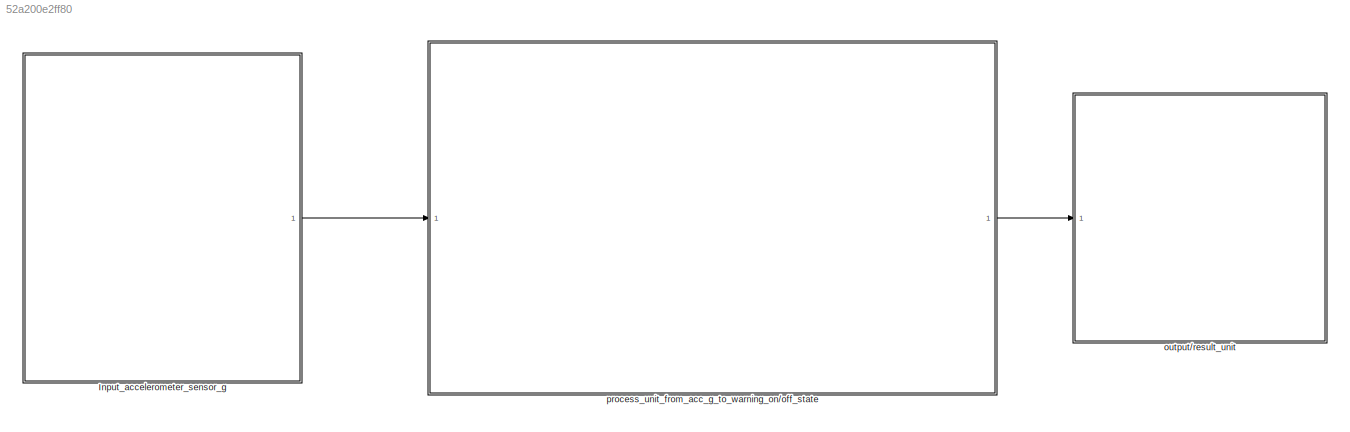
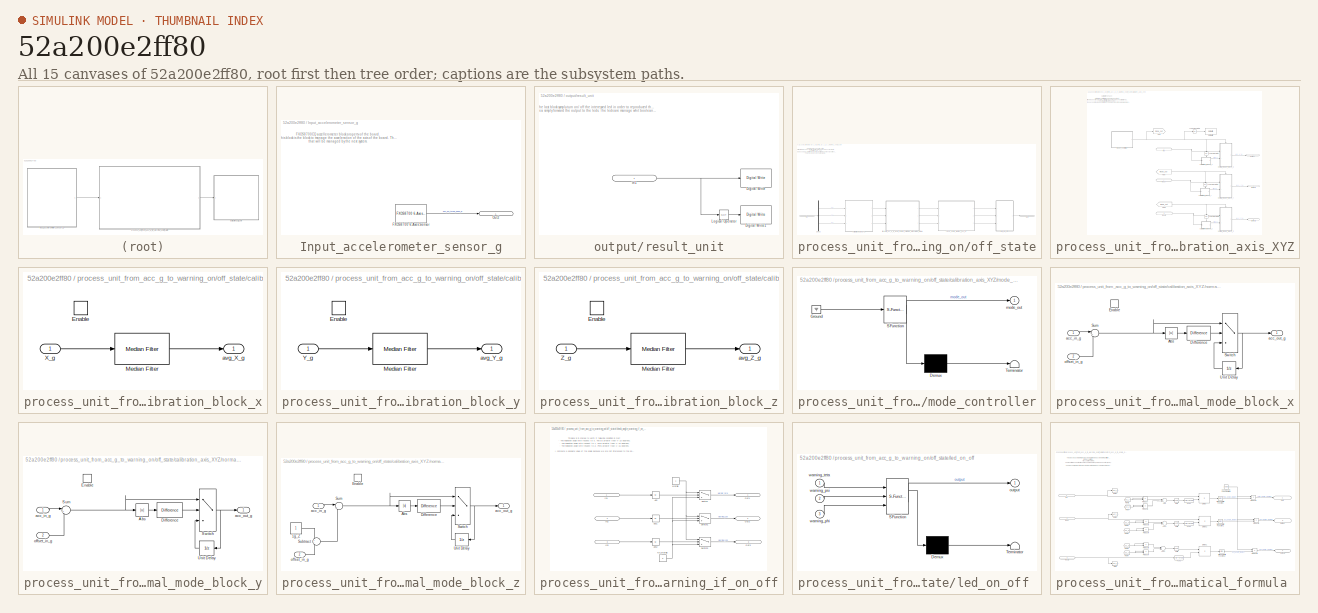
[diagram: thumbnail index - all 15 canvases of the model, root first then tree order]
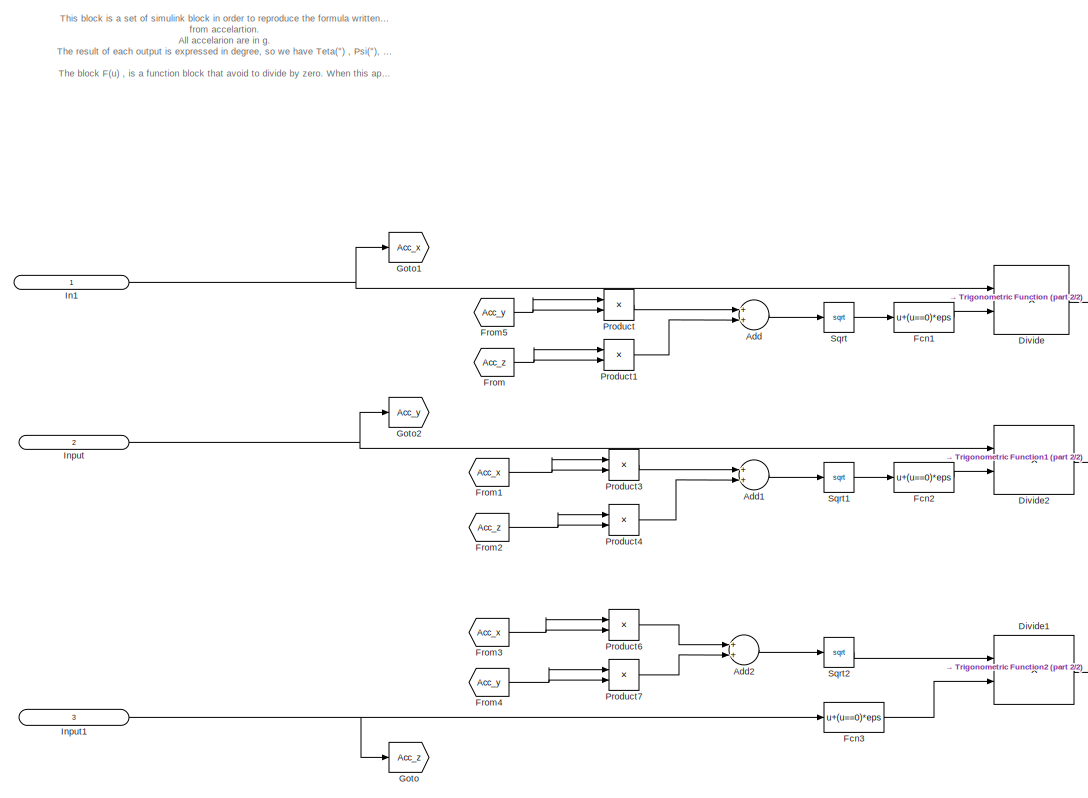
[diagram: process_unit_from_acc_g_to_warning_on/off_state/transform_acc_g_to_angle_degree_performing_mathematical_formula  - part 1/2, left side, full height]
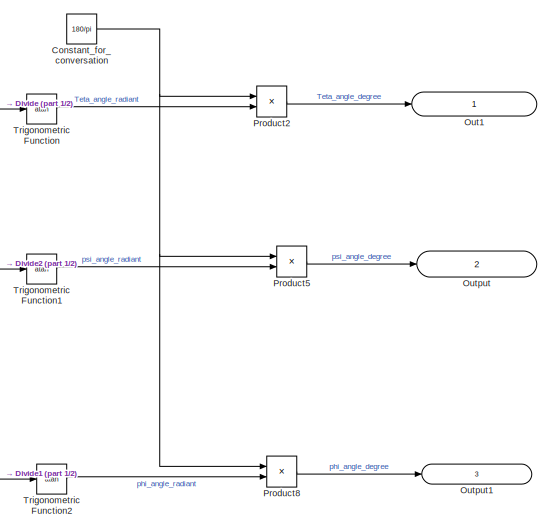
[diagram: process_unit_from_acc_g_to_warning_on/off_state/transform_acc_g_to_angle_degree_performing_mathematical_formula  - part 2/2, middle right region]
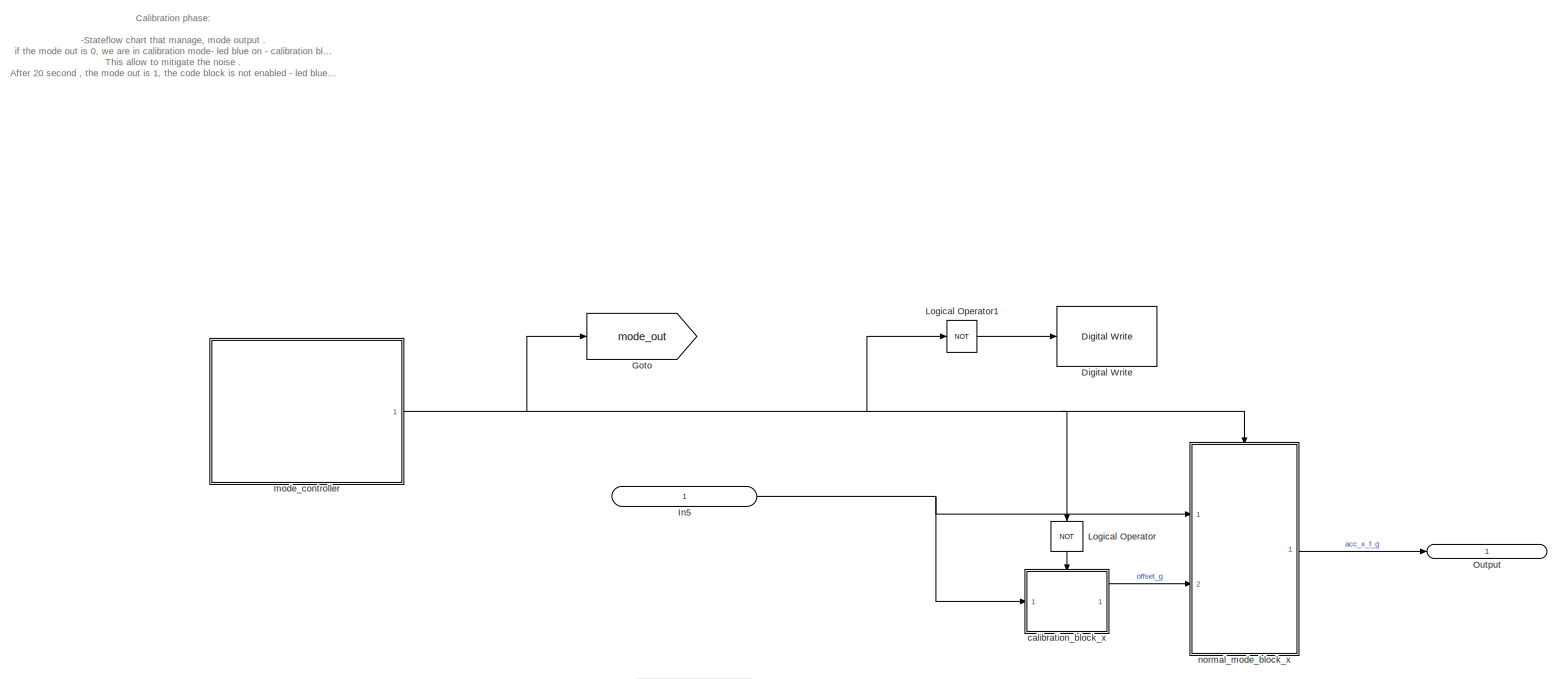
[diagram: process_unit_from_acc_g_to_warning_on/off_state/calibration_axis_XYZ - part 1/2, full width, top band]
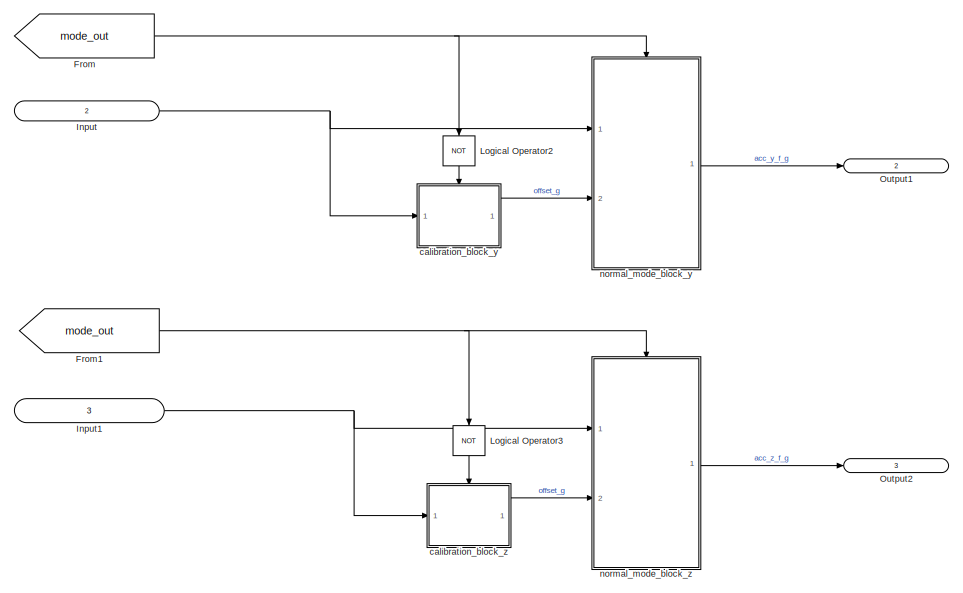
[diagram: process_unit_from_acc_g_to_warning_on/off_state/calibration_axis_XYZ - part 2/2, bottom right region]
MODEL slx_52a200e2ff80
KIND model
CONFIG AbsTol = auto
CONFIG EnableMultiTasking = on
CONFIG FixedStep = 0.1
CONFIG MaxStep = auto
CONFIG MinStep = auto
CONFIG RelTol = 1e-3
CONFIG SampleTimeConstraint = Unconstrained
CONFIG Solver = FixedStepDiscrete
CONFIG SolverName = FixedStepDiscrete
CONFIG StartTime = 0.0
CONFIG StopTime = 30
BLOCK [SubSystem] Input_accelerometer_sensor_g
  Ports = [0, 1]
  RequestExecContextInheritance = off
BLOCK [Reference] Input_accelerometer_sensor_g/FXOS8700 6-Axes Sensor  REF=frdmk64flib/FXOS8700 6-Axes Sensor
  Ports = [0, 1]
  SourceBlock = frdmk64flib/FXOS8700 6-Axes Sensor
  SourceProductBaseCode = EC_FRDM_K64F
  SourceProductName = Simulink Coder Support Package for NXP FRDM-K64F Board
  SourceType = freedomk64f.fxos8700
BLOCK [Outport] Input_accelerometer_sensor_g/Out2
  IconDisplay = Signal name
BLOCK [SubSystem] output//result_unit
  Ports = [1]
  RequestExecContextInheritance = off
BLOCK [Reference] output//result_unit/Digital Write  REF=frdmk64flib/Digital Write
  Ports = [1]
  SourceBlock = frdmk64flib/Digital Write
  SourceProductBaseCode = EC_FRDM_K64F
  SourceProductName = Simulink Coder Support Package for NXP FRDM-K64F Board
  SourceType = freedomk64f.DigitalWrite
BLOCK [Reference] output//result_unit/Digital Write1  REF=frdmk64flib/Digital Write
  Ports = [1]
  SourceBlock = frdmk64flib/Digital Write
  SourceProductBaseCode = EC_FRDM_K64F
  SourceProductName = Simulink Coder Support Package for NXP FRDM-K64F Board
  SourceType = freedomk64f.DigitalWrite
BLOCK [Inport] output//result_unit/In1
  IconDisplay = Signal name
BLOCK [Logic] output//result_unit/Logical Operator
  AllPortsSameDT = off
  Operator = NOT
  OutDataTypeStr = boolean
  Ports = [1, 1]
BLOCK [SubSystem] process_unit_from_acc_g_to_warning_on//off_state
  Ports = [1, 1]
  RequestExecContextInheritance = off
BLOCK [Demux] process_unit_from_acc_g_to_warning_on//off_state/Demux
  DisplayOption = bar
  Outputs = 3
  Ports = [1, 3]
BLOCK [Inport] process_unit_from_acc_g_to_warning_on//off_state/In1
  IconDisplay = Signal name
BLOCK [Outport] process_unit_from_acc_g_to_warning_on//off_state/Out1
  IconDisplay = Signal name
BLOCK [SubSystem] process_unit_from_acc_g_to_warning_on//off_state/calibration_axis_XYZ
  Ports = [3, 3]
  RequestExecContextInheritance = off
BLOCK [Reference] process_unit_from_acc_g_to_warning_on//off_state/calibration_axis_XYZ/Digital Write  REF=frdmk64flib/Digital Write
  Ports = [1]
  SourceBlock = frdmk64flib/Digital Write
  SourceProductBaseCode = EC_FRDM_K64F
  SourceProductName = Simulink Coder Support Package for NXP FRDM-K64F Board
  SourceType = freedomk64f.DigitalWrite
BLOCK [From] process_unit_from_acc_g_to_warning_on//off_state/calibration_axis_XYZ/From
  GotoTag = mode_out
BLOCK [From] process_unit_from_acc_g_to_warning_on//off_state/calibration_axis_XYZ/From1
  GotoTag = mode_out
BLOCK [Goto] process_unit_from_acc_g_to_warning_on//off_state/calibration_axis_XYZ/Goto
  GotoTag = mode_out
BLOCK [Inport] process_unit_from_acc_g_to_warning_on//off_state/calibration_axis_XYZ/In5
  IconDisplay = Signal name
BLOCK [Inport] process_unit_from_acc_g_to_warning_on//off_state/calibration_axis_XYZ/Input
  IconDisplay = Signal name
  Port = 2
BLOCK [Inport] process_unit_from_acc_g_to_warning_on//off_state/calibration_axis_XYZ/Input1
  IconDisplay = Signal name
  Port = 3
BLOCK [Logic] process_unit_from_acc_g_to_warning_on//off_state/calibration_axis_XYZ/Logical Operator
  AllPortsSameDT = off
  Operator = NOT
  OutDataTypeStr = boolean
  Ports = [1, 1]
BLOCK [Logic] process_unit_from_acc_g_to_warning_on//off_state/calibration_axis_XYZ/Logical Operator1
  AllPortsSameDT = off
  Operator = NOT
  OutDataTypeStr = boolean
  Ports = [1, 1]
BLOCK [Logic] process_unit_from_acc_g_to_warning_on//off_state/calibration_axis_XYZ/Logical Operator2
  AllPortsSameDT = off
  Operator = NOT
  OutDataTypeStr = boolean
  Ports = [1, 1]
BLOCK [Logic] process_unit_from_acc_g_to_warning_on//off_state/calibration_axis_XYZ/Logical Operator3
  AllPortsSameDT = off
  Operator = NOT
  OutDataTypeStr = boolean
  Ports = [1, 1]
BLOCK [Outport] process_unit_from_acc_g_to_warning_on//off_state/calibration_axis_XYZ/Output
  IconDisplay = Signal name
BLOCK [Outport] process_unit_from_acc_g_to_warning_on//off_state/calibration_axis_XYZ/Output1
  IconDisplay = Signal name
  Port = 2
BLOCK [Outport] process_unit_from_acc_g_to_warning_on//off_state/calibration_axis_XYZ/Output2
  IconDisplay = Signal name
  Port = 3
BLOCK [SubSystem] process_unit_from_acc_g_to_warning_on//off_state/calibration_axis_XYZ/calibration_block_x
  Ports = [1, 1, 1]
  RequestExecContextInheritance = off
BLOCK [EnablePort] process_unit_from_acc_g_to_warning_on//off_state/calibration_axis_XYZ/calibration_block_x/Enable
  Ports = []
BLOCK [Reference] process_unit_from_acc_g_to_warning_on//off_state/calibration_axis_XYZ/calibration_block_x/Median Filter  REF=dspstat3/Median
Filter
  Ports = [1, 1]
  SourceBlock = dspstat3/Median\nFilter
  SourceProductBaseCode = DS
  SourceProductName = DSP System Toolbox
  SourceType = dsp.MedianFilter
BLOCK [Inport] process_unit_from_acc_g_to_warning_on//off_state/calibration_axis_XYZ/calibration_block_x/X_g
  IconDisplay = Port number
BLOCK [Outport] process_unit_from_acc_g_to_warning_on//off_state/calibration_axis_XYZ/calibration_block_x/avg_X_g
  IconDisplay = Port number
BLOCK [SubSystem] process_unit_from_acc_g_to_warning_on//off_state/calibration_axis_XYZ/calibration_block_y
  Ports = [1, 1, 1]
  RequestExecContextInheritance = off
BLOCK [EnablePort] process_unit_from_acc_g_to_warning_on//off_state/calibration_axis_XYZ/calibration_block_y/Enable
  Ports = []
BLOCK [Reference] process_unit_from_acc_g_to_warning_on//off_state/calibration_axis_XYZ/calibration_block_y/Median Filter  REF=dspstat3/Median
Filter
  Ports = [1, 1]
  SourceBlock = dspstat3/Median\nFilter
  SourceProductBaseCode = DS
  SourceProductName = DSP System Toolbox
  SourceType = dsp.MedianFilter
BLOCK [Inport] process_unit_from_acc_g_to_warning_on//off_state/calibration_axis_XYZ/calibration_block_y/Y_g
  IconDisplay = Port number
BLOCK [Outport] process_unit_from_acc_g_to_warning_on//off_state/calibration_axis_XYZ/calibration_block_y/avg_Y_g
  IconDisplay = Port number
BLOCK [SubSystem] process_unit_from_acc_g_to_warning_on//off_state/calibration_axis_XYZ/calibration_block_z
  Ports = [1, 1, 1]
  RequestExecContextInheritance = off
BLOCK [EnablePort] process_unit_from_acc_g_to_warning_on//off_state/calibration_axis_XYZ/calibration_block_z/Enable
  Ports = []
BLOCK [Reference] process_unit_from_acc_g_to_warning_on//off_state/calibration_axis_XYZ/calibration_block_z/Median Filter  REF=dspstat3/Median
Filter
  Ports = [1, 1]
  SourceBlock = dspstat3/Median\nFilter
  SourceProductBaseCode = DS
  SourceProductName = DSP System Toolbox
  SourceType = dsp.MedianFilter
BLOCK [Inport] process_unit_from_acc_g_to_warning_on//off_state/calibration_axis_XYZ/calibration_block_z/Z_g
  IconDisplay = Port number
BLOCK [Outport] process_unit_from_acc_g_to_warning_on//off_state/calibration_axis_XYZ/calibration_block_z/avg_Z_g
  IconDisplay = Port number
BLOCK [SubSystem] process_unit_from_acc_g_to_warning_on//off_state/calibration_axis_XYZ/mode_controller
  BlockKeywords = __PRM__SERIALIZED__DATA__:Stateflow Chart,Stateflow Diagram
  ErrorFcn = Stateflow.Translate.translate
  PermitHierarchicalResolution = ExplicitOnly
  Ports = [0, 1]
  RequestExecContextInheritance = off
  SFBlockType = Chart
  TreatAsAtomicUnit = on
BLOCK [Demux] process_unit_from_acc_g_to_warning_on//off_state/calibration_axis_XYZ/mode_controller/ Demux 
  Outputs = 1
  Ports = [1, 1]
BLOCK [Ground] process_unit_from_acc_g_to_warning_on//off_state/calibration_axis_XYZ/mode_controller/ Ground 
BLOCK [S-Function] process_unit_from_acc_g_to_warning_on//off_state/calibration_axis_XYZ/mode_controller/ SFunction 
  EnableBusSupport = on
  FunctionName = sf_sfun
  PortCounts = [1 2]
  Ports = [1, 2]
  SFcnIsStateOwnerBlock = off
  SFunctionDeploymentMode = off
  Tag = Stateflow S-Function 3
BLOCK [Terminator] process_unit_from_acc_g_to_warning_on//off_state/calibration_axis_XYZ/mode_controller/ Terminator 
BLOCK [Outport] process_unit_from_acc_g_to_warning_on//off_state/calibration_axis_XYZ/mode_controller/mode_out
  IconDisplay = Port number
BLOCK [SubSystem] process_unit_from_acc_g_to_warning_on//off_state/calibration_axis_XYZ/normal_mode_block_x
  Ports = [2, 1, 1]
  RequestExecContextInheritance = off
BLOCK [Abs] process_unit_from_acc_g_to_warning_on//off_state/calibration_axis_XYZ/normal_mode_block_x/Abs
  SaturateOnIntegerOverflow = off
BLOCK [Reference] process_unit_from_acc_g_to_warning_on//off_state/calibration_axis_XYZ/normal_mode_block_x/Difference  REF=simulink/Discrete/Difference
  Ports = [1, 1]
  SourceBlock = simulink/Discrete/Difference
  SourceProductBaseCode = SL
  SourceProductName = Simulink
  SourceType = Difference
BLOCK [EnablePort] process_unit_from_acc_g_to_warning_on//off_state/calibration_axis_XYZ/normal_mode_block_x/Enable
  Ports = []
BLOCK [Sum] process_unit_from_acc_g_to_warning_on//off_state/calibration_axis_XYZ/normal_mode_block_x/Sum
  IconShape = round
  InputSameDT = off
  Inputs = |+-
  OutDataTypeStr = Inherit: Inherit via internal rule
  Ports = [2, 1]
  SaturateOnIntegerOverflow = off
BLOCK [Switch] process_unit_from_acc_g_to_warning_on//off_state/calibration_axis_XYZ/normal_mode_block_x/Switch
  Criteria = u2 > Threshold
  InputSameDT = off
  SaturateOnIntegerOverflow = off
  Threshold = 0.002
BLOCK [UnitDelay] process_unit_from_acc_g_to_warning_on//off_state/calibration_axis_XYZ/normal_mode_block_x/Unit Delay
  HasFrameUpgradeWarning = on
  SampleTime = -1
BLOCK [Inport] process_unit_from_acc_g_to_warning_on//off_state/calibration_axis_XYZ/normal_mode_block_x/acc_in_g
  IconDisplay = Port number
BLOCK [Outport] process_unit_from_acc_g_to_warning_on//off_state/calibration_axis_XYZ/normal_mode_block_x/acc_out_g
  IconDisplay = Port number
BLOCK [Inport] process_unit_from_acc_g_to_warning_on//off_state/calibration_axis_XYZ/normal_mode_block_x/offset_in_g
  IconDisplay = Port number
  Port = 2
BLOCK [SubSystem] process_unit_from_acc_g_to_warning_on//off_state/calibration_axis_XYZ/normal_mode_block_y
  Ports = [2, 1, 1]
  RequestExecContextInheritance = off
BLOCK [Abs] process_unit_from_acc_g_to_warning_on//off_state/calibration_axis_XYZ/normal_mode_block_y/Abs
  SaturateOnIntegerOverflow = off
BLOCK [Reference] process_unit_from_acc_g_to_warning_on//off_state/calibration_axis_XYZ/normal_mode_block_y/Difference  REF=simulink/Discrete/Difference
  Ports = [1, 1]
  SourceBlock = simulink/Discrete/Difference
  SourceProductBaseCode = SL
  SourceProductName = Simulink
  SourceType = Difference
BLOCK [EnablePort] process_unit_from_acc_g_to_warning_on//off_state/calibration_axis_XYZ/normal_mode_block_y/Enable
  Ports = []
BLOCK [Sum] process_unit_from_acc_g_to_warning_on//off_state/calibration_axis_XYZ/normal_mode_block_y/Sum
  IconShape = round
  InputSameDT = off
  Inputs = |+-
  OutDataTypeStr = Inherit: Inherit via internal rule
  Ports = [2, 1]
  SaturateOnIntegerOverflow = off
BLOCK [Switch] process_unit_from_acc_g_to_warning_on//off_state/calibration_axis_XYZ/normal_mode_block_y/Switch
  Criteria = u2 > Threshold
  InputSameDT = off
  SaturateOnIntegerOverflow = off
  Threshold = 0.002
BLOCK [UnitDelay] process_unit_from_acc_g_to_warning_on//off_state/calibration_axis_XYZ/normal_mode_block_y/Unit Delay
  HasFrameUpgradeWarning = on
  SampleTime = -1
BLOCK [Inport] process_unit_from_acc_g_to_warning_on//off_state/calibration_axis_XYZ/normal_mode_block_y/acc_in_g
  IconDisplay = Port number
BLOCK [Outport] process_unit_from_acc_g_to_warning_on//off_state/calibration_axis_XYZ/normal_mode_block_y/acc_out_g
  IconDisplay = Port number
BLOCK [Inport] process_unit_from_acc_g_to_warning_on//off_state/calibration_axis_XYZ/normal_mode_block_y/offset_in_g
  IconDisplay = Port number
  Port = 2
BLOCK [SubSystem] process_unit_from_acc_g_to_warning_on//off_state/calibration_axis_XYZ/normal_mode_block_z
  Ports = [2, 1, 1]
  RequestExecContextInheritance = off
BLOCK [Constant] process_unit_from_acc_g_to_warning_on//off_state/calibration_axis_XYZ/normal_mode_block_z/1g_Z
  SampleTime = -1
BLOCK [Abs] process_unit_from_acc_g_to_warning_on//off_state/calibration_axis_XYZ/normal_mode_block_z/Abs
  SaturateOnIntegerOverflow = off
BLOCK [Reference] process_unit_from_acc_g_to_warning_on//off_state/calibration_axis_XYZ/normal_mode_block_z/Difference  REF=simulink/Discrete/Difference
  Ports = [1, 1]
  SourceBlock = simulink/Discrete/Difference
  SourceProductBaseCode = SL
  SourceProductName = Simulink
  SourceType = Difference
BLOCK [EnablePort] process_unit_from_acc_g_to_warning_on//off_state/calibration_axis_XYZ/normal_mode_block_z/Enable
  Ports = []
BLOCK [Sum] process_unit_from_acc_g_to_warning_on//off_state/calibration_axis_XYZ/normal_mode_block_z/Subtract
  IconShape = round
  InputSameDT = off
  Inputs = +-
  OutDataTypeStr = Inherit: Inherit via internal rule
  Ports = [2, 1]
  SaturateOnIntegerOverflow = off
BLOCK [Sum] process_unit_from_acc_g_to_warning_on//off_state/calibration_axis_XYZ/normal_mode_block_z/Sum
  IconShape = round
  InputSameDT = off
  Inputs = |+-
  OutDataTypeStr = Inherit: Inherit via internal rule
  Ports = [2, 1]
  SaturateOnIntegerOverflow = off
BLOCK [Switch] process_unit_from_acc_g_to_warning_on//off_state/calibration_axis_XYZ/normal_mode_block_z/Switch
  Criteria = u2 > Threshold
  InputSameDT = off
  SaturateOnIntegerOverflow = off
  Threshold = 0.002
BLOCK [UnitDelay] process_unit_from_acc_g_to_warning_on//off_state/calibration_axis_XYZ/normal_mode_block_z/Unit Delay
  HasFrameUpgradeWarning = on
  SampleTime = -1
BLOCK [Inport] process_unit_from_acc_g_to_warning_on//off_state/calibration_axis_XYZ/normal_mode_block_z/acc_in_g
  IconDisplay = Port number
BLOCK [Outport] process_unit_from_acc_g_to_warning_on//off_state/calibration_axis_XYZ/normal_mode_block_z/acc_out_g
  IconDisplay = Port number
BLOCK [Inport] process_unit_from_acc_g_to_warning_on//off_state/calibration_axis_XYZ/normal_mode_block_z/offset_in_g
  IconDisplay = Port number
  Port = 2
BLOCK [SubSystem] process_unit_from_acc_g_to_warning_on//off_state/check_angle_warning_if_on_off
  Ports = [3, 3]
  RequestExecContextInheritance = off
BLOCK [Abs] process_unit_from_acc_g_to_warning_on//off_state/check_angle_warning_if_on_off/Abs
  SaturateOnIntegerOverflow = off
BLOCK [Abs] process_unit_from_acc_g_to_warning_on//off_state/check_angle_warning_if_on_off/Abs1
  SaturateOnIntegerOverflow = off
BLOCK [Abs] process_unit_from_acc_g_to_warning_on//off_state/check_angle_warning_if_on_off/Abs2
  SaturateOnIntegerOverflow = off
BLOCK [Inport] process_unit_from_acc_g_to_warning_on//off_state/check_angle_warning_if_on_off/In1
  IconDisplay = Signal name
BLOCK [Inport] process_unit_from_acc_g_to_warning_on//off_state/check_angle_warning_if_on_off/In2
  IconDisplay = Signal name
  Port = 2
BLOCK [Inport] process_unit_from_acc_g_to_warning_on//off_state/check_angle_warning_if_on_off/In3
  IconDisplay = Signal name
  Port = 3
BLOCK [Constant] process_unit_from_acc_g_to_warning_on//off_state/check_angle_warning_if_on_off/No_warnig
  Value = 0
BLOCK [Outport] process_unit_from_acc_g_to_warning_on//off_state/check_angle_warning_if_on_off/Out1
  IconDisplay = Signal name
BLOCK [Outport] process_unit_from_acc_g_to_warning_on//off_state/check_angle_warning_if_on_off/Out2
  IconDisplay = Signal name
  Port = 2
BLOCK [Outport] process_unit_from_acc_g_to_warning_on//off_state/check_angle_warning_if_on_off/Out3
  IconDisplay = Signal name
  Port = 3
BLOCK [Switch] process_unit_from_acc_g_to_warning_on//off_state/check_angle_warning_if_on_off/Switch
  Criteria = u2 > Threshold
  InputSameDT = off
  SaturateOnIntegerOverflow = off
  Threshold = 15
BLOCK [Switch] process_unit_from_acc_g_to_warning_on//off_state/check_angle_warning_if_on_off/Switch1
  Criteria = u2 > Threshold
  InputSameDT = off
  SaturateOnIntegerOverflow = off
  Threshold = 15
BLOCK [Switch] process_unit_from_acc_g_to_warning_on//off_state/check_angle_warning_if_on_off/Switch2
  Criteria = u2 > Threshold
  InputSameDT = off
  SaturateOnIntegerOverflow = off
  Threshold = 15
BLOCK [Constant] process_unit_from_acc_g_to_warning_on//off_state/check_angle_warning_if_on_off/warnig 
BLOCK [SubSystem] process_unit_from_acc_g_to_warning_on//off_state/led_on_off 
  BlockKeywords = __PRM__SERIALIZED__DATA__:Stateflow Chart,Stateflow Diagram
  ErrorFcn = Stateflow.Translate.translate
  PermitHierarchicalResolution = ExplicitOnly
  Ports = [3, 1]
  RequestExecContextInheritance = off
  SFBlockType = Chart
  TreatAsAtomicUnit = on
BLOCK [Demux] process_unit_from_acc_g_to_warning_on//off_state/led_on_off / Demux 
  Outputs = 1
  Ports = [1, 1]
BLOCK [S-Function] process_unit_from_acc_g_to_warning_on//off_state/led_on_off / SFunction 
  EnableBusSupport = on
  FunctionName = sf_sfun
  PortCounts = [3 2]
  Ports = [3, 2]
  SFcnIsStateOwnerBlock = off
  SFunctionDeploymentMode = off
  Tag = Stateflow S-Function 4
BLOCK [Terminator] process_unit_from_acc_g_to_warning_on//off_state/led_on_off / Terminator 
BLOCK [Outport] process_unit_from_acc_g_to_warning_on//off_state/led_on_off /output
  IconDisplay = Port number
BLOCK [Inport] process_unit_from_acc_g_to_warning_on//off_state/led_on_off /warning_phi
  IconDisplay = Port number
  Port = 3
BLOCK [Inport] process_unit_from_acc_g_to_warning_on//off_state/led_on_off /warning_psi
  IconDisplay = Port number
  Port = 2
BLOCK [Inport] process_unit_from_acc_g_to_warning_on//off_state/led_on_off /warning_teta
  IconDisplay = Port number
BLOCK [SubSystem] process_unit_from_acc_g_to_warning_on//off_state/transform_acc_g_to_angle_degree_performing_mathematical_formula 
  Ports = [3, 3]
  RequestExecContextInheritance = off
BLOCK [Sum] process_unit_from_acc_g_to_warning_on//off_state/transform_acc_g_to_angle_degree_performing_mathematical_formula /Add
  InputSameDT = off
  OutDataTypeStr = Inherit: Inherit via internal rule
  Ports = [2, 1]
  SaturateOnIntegerOverflow = off
BLOCK [Sum] process_unit_from_acc_g_to_warning_on//off_state/transform_acc_g_to_angle_degree_performing_mathematical_formula /Add1
  InputSameDT = off
  OutDataTypeStr = Inherit: Inherit via internal rule
  Ports = [2, 1]
  SaturateOnIntegerOverflow = off
BLOCK [Sum] process_unit_from_acc_g_to_warning_on//off_state/transform_acc_g_to_angle_degree_performing_mathematical_formula /Add2
  InputSameDT = off
  OutDataTypeStr = Inherit: Inherit via internal rule
  Ports = [2, 1]
  SaturateOnIntegerOverflow = off
BLOCK [Constant] process_unit_from_acc_g_to_warning_on//off_state/transform_acc_g_to_angle_degree_performing_mathematical_formula /Constant_for_conversation
  Value = 180/pi
BLOCK [Product] process_unit_from_acc_g_to_warning_on//off_state/transform_acc_g_to_angle_degree_performing_mathematical_formula /Divide
  InputSameDT = off
  Inputs = */
  OutDataTypeStr = Inherit: Inherit via internal rule
  Ports = [2, 1]
  RndMeth = Floor
  SaturateOnIntegerOverflow = off
BLOCK [Product] process_unit_from_acc_g_to_warning_on//off_state/transform_acc_g_to_angle_degree_performing_mathematical_formula /Divide1
  InputSameDT = off
  Inputs = */
  OutDataTypeStr = Inherit: Inherit via internal rule
  Ports = [2, 1]
  RndMeth = Floor
  SaturateOnIntegerOverflow = off
BLOCK [Product] process_unit_from_acc_g_to_warning_on//off_state/transform_acc_g_to_angle_degree_performing_mathematical_formula /Divide2
  InputSameDT = off
  Inputs = */
  OutDataTypeStr = Inherit: Inherit via internal rule
  Ports = [2, 1]
  RndMeth = Floor
  SaturateOnIntegerOverflow = off
BLOCK [Fcn] process_unit_from_acc_g_to_warning_on//off_state/transform_acc_g_to_angle_degree_performing_mathematical_formula /Fcn1
  Expr = u+(u==0)*eps
BLOCK [Fcn] process_unit_from_acc_g_to_warning_on//off_state/transform_acc_g_to_angle_degree_performing_mathematical_formula /Fcn2
  Expr = u+(u==0)*eps
BLOCK [Fcn] process_unit_from_acc_g_to_warning_on//off_state/transform_acc_g_to_angle_degree_performing_mathematical_formula /Fcn3
  Expr = u+(u==0)*eps
BLOCK [From] process_unit_from_acc_g_to_warning_on//off_state/transform_acc_g_to_angle_degree_performing_mathematical_formula /From
  GotoTag = Acc_z
BLOCK [From] process_unit_from_acc_g_to_warning_on//off_state/transform_acc_g_to_angle_degree_performing_mathematical_formula /From1
  GotoTag = Acc_x
BLOCK [From] process_unit_from_acc_g_to_warning_on//off_state/transform_acc_g_to_angle_degree_performing_mathematical_formula /From2
  GotoTag = Acc_z
BLOCK [From] process_unit_from_acc_g_to_warning_on//off_state/transform_acc_g_to_angle_degree_performing_mathematical_formula /From3
  GotoTag = Acc_x
BLOCK [From] process_unit_from_acc_g_to_warning_on//off_state/transform_acc_g_to_angle_degree_performing_mathematical_formula /From4
  GotoTag = Acc_y
BLOCK [From] process_unit_from_acc_g_to_warning_on//off_state/transform_acc_g_to_angle_degree_performing_mathematical_formula /From5
  GotoTag = Acc_y
BLOCK [Goto] process_unit_from_acc_g_to_warning_on//off_state/transform_acc_g_to_angle_degree_performing_mathematical_formula /Goto
  GotoTag = Acc_z
BLOCK [Goto] process_unit_from_acc_g_to_warning_on//off_state/transform_acc_g_to_angle_degree_performing_mathematical_formula /Goto1
  GotoTag = Acc_x
BLOCK [Goto] process_unit_from_acc_g_to_warning_on//off_state/transform_acc_g_to_angle_degree_performing_mathematical_formula /Goto2
  GotoTag = Acc_y
BLOCK [Inport] process_unit_from_acc_g_to_warning_on//off_state/transform_acc_g_to_angle_degree_performing_mathematical_formula /In1
  IconDisplay = Signal name
BLOCK [Inport] process_unit_from_acc_g_to_warning_on//off_state/transform_acc_g_to_angle_degree_performing_mathematical_formula /Input
  IconDisplay = Signal name
  Port = 2
BLOCK [Inport] process_unit_from_acc_g_to_warning_on//off_state/transform_acc_g_to_angle_degree_performing_mathematical_formula /Input1
  IconDisplay = Signal name
  Port = 3
BLOCK [Outport] process_unit_from_acc_g_to_warning_on//off_state/transform_acc_g_to_angle_degree_performing_mathematical_formula /Out1
  IconDisplay = Signal name
BLOCK [Outport] process_unit_from_acc_g_to_warning_on//off_state/transform_acc_g_to_angle_degree_performing_mathematical_formula /Output
  IconDisplay = Signal name
  Port = 2
BLOCK [Outport] process_unit_from_acc_g_to_warning_on//off_state/transform_acc_g_to_angle_degree_performing_mathematical_formula /Output1
  IconDisplay = Signal name
  Port = 3
BLOCK [Product] process_unit_from_acc_g_to_warning_on//off_state/transform_acc_g_to_angle_degree_performing_mathematical_formula /Product
  InputSameDT = off
  OutDataTypeStr = Inherit: Inherit via internal rule
  Ports = [2, 1]
  RndMeth = Floor
  SaturateOnIntegerOverflow = off
BLOCK [Product] process_unit_from_acc_g_to_warning_on//off_state/transform_acc_g_to_angle_degree_performing_mathematical_formula /Product1
  InputSameDT = off
  OutDataTypeStr = Inherit: Inherit via internal rule
  Ports = [2, 1]
  RndMeth = Floor
  SaturateOnIntegerOverflow = off
BLOCK [Product] process_unit_from_acc_g_to_warning_on//off_state/transform_acc_g_to_angle_degree_performing_mathematical_formula /Product2
  InputSameDT = off
  OutDataTypeStr = Inherit: Inherit via internal rule
  Ports = [2, 1]
  RndMeth = Floor
  SaturateOnIntegerOverflow = off
BLOCK [Product] process_unit_from_acc_g_to_warning_on//off_state/transform_acc_g_to_angle_degree_performing_mathematical_formula /Product3
  InputSameDT = off
  OutDataTypeStr = Inherit: Inherit via internal rule
  Ports = [2, 1]
  RndMeth = Floor
  SaturateOnIntegerOverflow = off
BLOCK [Product] process_unit_from_acc_g_to_warning_on//off_state/transform_acc_g_to_angle_degree_performing_mathematical_formula /Product4
  InputSameDT = off
  OutDataTypeStr = Inherit: Inherit via internal rule
  Ports = [2, 1]
  RndMeth = Floor
  SaturateOnIntegerOverflow = off
BLOCK [Product] process_unit_from_acc_g_to_warning_on//off_state/transform_acc_g_to_angle_degree_performing_mathematical_formula /Product5
  InputSameDT = off
  OutDataTypeStr = Inherit: Inherit via internal rule
  Ports = [2, 1]
  RndMeth = Floor
  SaturateOnIntegerOverflow = off
BLOCK [Product] process_unit_from_acc_g_to_warning_on//off_state/transform_acc_g_to_angle_degree_performing_mathematical_formula /Product6
  InputSameDT = off
  OutDataTypeStr = Inherit: Inherit via internal rule
  Ports = [2, 1]
  RndMeth = Floor
  SaturateOnIntegerOverflow = off
BLOCK [Product] process_unit_from_acc_g_to_warning_on//off_state/transform_acc_g_to_angle_degree_performing_mathematical_formula /Product7
  InputSameDT = off
  OutDataTypeStr = Inherit: Inherit via internal rule
  Ports = [2, 1]
  RndMeth = Floor
  SaturateOnIntegerOverflow = off
BLOCK [Product] process_unit_from_acc_g_to_warning_on//off_state/transform_acc_g_to_angle_degree_performing_mathematical_formula /Product8
  InputSameDT = off
  OutDataTypeStr = Inherit: Inherit via internal rule
  Ports = [2, 1]
  RndMeth = Floor
  SaturateOnIntegerOverflow = off
BLOCK [Sqrt] process_unit_from_acc_g_to_warning_on//off_state/transform_acc_g_to_angle_degree_performing_mathematical_formula /Sqrt
BLOCK [Sqrt] process_unit_from_acc_g_to_warning_on//off_state/transform_acc_g_to_angle_degree_performing_mathematical_formula /Sqrt1
BLOCK [Sqrt] process_unit_from_acc_g_to_warning_on//off_state/transform_acc_g_to_angle_degree_performing_mathematical_formula /Sqrt2
BLOCK [Trigonometry] process_unit_from_acc_g_to_warning_on//off_state/transform_acc_g_to_angle_degree_performing_mathematical_formula /Trigonometric Function
  Operator = atan
  Ports = [1, 1]
BLOCK [Trigonometry] process_unit_from_acc_g_to_warning_on//off_state/transform_acc_g_to_angle_degree_performing_mathematical_formula /Trigonometric Function1
  Operator = atan
  Ports = [1, 1]
BLOCK [Trigonometry] process_unit_from_acc_g_to_warning_on//off_state/transform_acc_g_to_angle_degree_performing_mathematical_formula /Trigonometric Function2
  Operator = atan
  Ports = [1, 1]
ANNOTATION Input_accelerometer_sensor_g: FXOS8700CQ accellerometer block property of the board. This block is the block to manage the acceleration of the axis of the board. The output is a triad of value [Acc_x,Acc_y,Acc_z] , in a range +2g / -2g that will be managed by the next system.
ANNOTATION output//result_unit: The last block symply turn on/ off the interessed led in order to reproduced the desired behavior. It is a simply forward the output to the leds. The leds are manage whit boolean value.
ANNOTATION process_unit_from_acc_g_to_warning_on//off_state: This is the process unit system. I splited into three subsystem in order to create a clean process in order to see how data is processed during the woking mode: 1) calibration axis_XYZ This block deals a calibration phase. it consist in remove the noise of the signal. This phase lasts 20 second, the led blue is on. After that the led blue is off, and the board is ready to work. This phase is done ...<+1469ch>
ANNOTATION process_unit_from_acc_g_to_warning_on//off_state/calibration_axis_XYZ: Calibration phase: -Stateflow chart that manage, mode output . if the mode out is 0, we are in calibration mode- led blue on - calibration block works. Consist in produce an average of the past date in order to subtract this data as offset to the orginal signal. This allow to mitigate the noise . After 20 second , the mode out is 1, the code block is not enabled - led blue off - the normal block s...<+14ch>
ANNOTATION process_unit_from_acc_g_to_warning_on//off_state/check_angle_warning_if_on_off: Thi block is in charge to verify if following condition is met: - The inclination angle with respect to X, Teta is greater than +/-15 degrees; - The inclination angle with respect to Y, Psi is greater than +/-15 degrees; - The inclination angle with respect to Z, Phi is greater than +/-15 degrees. I compute a absolute value of the angle because we are not interessed to the positive o negative valu...<+285ch>
ANNOTATION process_unit_from_acc_g_to_warning_on//off_state/transform_acc_g_to_angle_degree_performing_mathematical_formula : This block is a set of simulink block in order to reproduce the formula written on the assignment to produce an angle starting from accelartion. All accelarion are in g. The result of each output is expressed in degree, so we have Teta(°) , Psi(°), Phi(°) The block F(u) , is a function block that avoid to divide by zero. When this append the output will have a number very near to zero but not zero...<+130ch>
LINE Input_accelerometer_sensor_g/FXOS8700 6-Axes Sensor:1 -> Input_accelerometer_sensor_g/Out2:1
LINE Input_accelerometer_sensor_g:1 -> process_unit_from_acc_g_to_warning_on//off_state:1
NET output//result_unit/In1:1 -> output//result_unit/Digital Write:1, output//result_unit/Logical Operator:1
LINE output//result_unit/Logical Operator:1 -> output//result_unit/Digital Write1:1
LINE process_unit_from_acc_g_to_warning_on//off_state/Demux:1 -> process_unit_from_acc_g_to_warning_on//off_state/calibration_axis_XYZ:1
LINE process_unit_from_acc_g_to_warning_on//off_state/Demux:2 -> process_unit_from_acc_g_to_warning_on//off_state/calibration_axis_XYZ:2
LINE process_unit_from_acc_g_to_warning_on//off_state/Demux:3 -> process_unit_from_acc_g_to_warning_on//off_state/calibration_axis_XYZ:3
LINE process_unit_from_acc_g_to_warning_on//off_state/In1:1 -> process_unit_from_acc_g_to_warning_on//off_state/Demux:1
NET process_unit_from_acc_g_to_warning_on//off_state/calibration_axis_XYZ/From1:1 -> process_unit_from_acc_g_to_warning_on//off_state/calibration_axis_XYZ/Logical Operator3:1, process_unit_from_acc_g_to_warning_on//off_state/calibration_axis_XYZ/normal_mode_block_z:enable
NET process_unit_from_acc_g_to_warning_on//off_state/calibration_axis_XYZ/From:1 -> process_unit_from_acc_g_to_warning_on//off_state/calibration_axis_XYZ/Logical Operator2:1, process_unit_from_acc_g_to_warning_on//off_state/calibration_axis_XYZ/normal_mode_block_y:enable
NET process_unit_from_acc_g_to_warning_on//off_state/calibration_axis_XYZ/In5:1 -> process_unit_from_acc_g_to_warning_on//off_state/calibration_axis_XYZ/calibration_block_x:1, process_unit_from_acc_g_to_warning_on//off_state/calibration_axis_XYZ/normal_mode_block_x:1
NET process_unit_from_acc_g_to_warning_on//off_state/calibration_axis_XYZ/Input1:1 -> process_unit_from_acc_g_to_warning_on//off_state/calibration_axis_XYZ/calibration_block_z:1, process_unit_from_acc_g_to_warning_on//off_state/calibration_axis_XYZ/normal_mode_block_z:1
NET process_unit_from_acc_g_to_warning_on//off_state/calibration_axis_XYZ/Input:1 -> process_unit_from_acc_g_to_warning_on//off_state/calibration_axis_XYZ/calibration_block_y:1, process_unit_from_acc_g_to_warning_on//off_state/calibration_axis_XYZ/normal_mode_block_y:1
LINE process_unit_from_acc_g_to_warning_on//off_state/calibration_axis_XYZ/Logical Operator1:1 -> process_unit_from_acc_g_to_warning_on//off_state/calibration_axis_XYZ/Digital Write:1
LINE process_unit_from_acc_g_to_warning_on//off_state/calibration_axis_XYZ/Logical Operator2:1 -> process_unit_from_acc_g_to_warning_on//off_state/calibration_axis_XYZ/calibration_block_y:enable
LINE process_unit_from_acc_g_to_warning_on//off_state/calibration_axis_XYZ/Logical Operator3:1 -> process_unit_from_acc_g_to_warning_on//off_state/calibration_axis_XYZ/calibration_block_z:enable
LINE process_unit_from_acc_g_to_warning_on//off_state/calibration_axis_XYZ/Logical Operator:1 -> process_unit_from_acc_g_to_warning_on//off_state/calibration_axis_XYZ/calibration_block_x:enable
LINE process_unit_from_acc_g_to_warning_on//off_state/calibration_axis_XYZ/calibration_block_x/Median Filter:1 -> process_unit_from_acc_g_to_warning_on//off_state/calibration_axis_XYZ/calibration_block_x/avg_X_g:1
LINE process_unit_from_acc_g_to_warning_on//off_state/calibration_axis_XYZ/calibration_block_x/X_g:1 -> process_unit_from_acc_g_to_warning_on//off_state/calibration_axis_XYZ/calibration_block_x/Median Filter:1
LINE process_unit_from_acc_g_to_warning_on//off_state/calibration_axis_XYZ/calibration_block_x:1 -> process_unit_from_acc_g_to_warning_on//off_state/calibration_axis_XYZ/normal_mode_block_x:2
LINE process_unit_from_acc_g_to_warning_on//off_state/calibration_axis_XYZ/calibration_block_y/Median Filter:1 -> process_unit_from_acc_g_to_warning_on//off_state/calibration_axis_XYZ/calibration_block_y/avg_Y_g:1
LINE process_unit_from_acc_g_to_warning_on//off_state/calibration_axis_XYZ/calibration_block_y/Y_g:1 -> process_unit_from_acc_g_to_warning_on//off_state/calibration_axis_XYZ/calibration_block_y/Median Filter:1
LINE process_unit_from_acc_g_to_warning_on//off_state/calibration_axis_XYZ/calibration_block_y:1 -> process_unit_from_acc_g_to_warning_on//off_state/calibration_axis_XYZ/normal_mode_block_y:2
LINE process_unit_from_acc_g_to_warning_on//off_state/calibration_axis_XYZ/calibration_block_z/Median Filter:1 -> process_unit_from_acc_g_to_warning_on//off_state/calibration_axis_XYZ/calibration_block_z/avg_Z_g:1
LINE process_unit_from_acc_g_to_warning_on//off_state/calibration_axis_XYZ/calibration_block_z/Z_g:1 -> process_unit_from_acc_g_to_warning_on//off_state/calibration_axis_XYZ/calibration_block_z/Median Filter:1
LINE process_unit_from_acc_g_to_warning_on//off_state/calibration_axis_XYZ/calibration_block_z:1 -> process_unit_from_acc_g_to_warning_on//off_state/calibration_axis_XYZ/normal_mode_block_z:2
NET process_unit_from_acc_g_to_warning_on//off_state/calibration_axis_XYZ/mode_controller:1 -> process_unit_from_acc_g_to_warning_on//off_state/calibration_axis_XYZ/Goto:1, process_unit_from_acc_g_to_warning_on//off_state/calibration_axis_XYZ/Logical Operator1:1, process_unit_from_acc_g_to_warning_on//off_state/calibration_axis_XYZ/Logical Operator:1, process_unit_from_acc_g_to_warning_on//off_state/calibration_axis_XYZ/normal_mode_block_x:enable
LINE process_unit_from_acc_g_to_warning_on//off_state/calibration_axis_XYZ/normal_mode_block_x/Abs:1 -> process_unit_from_acc_g_to_warning_on//off_state/calibration_axis_XYZ/normal_mode_block_x/Difference:1
LINE process_unit_from_acc_g_to_warning_on//off_state/calibration_axis_XYZ/normal_mode_block_x/Difference:1 -> process_unit_from_acc_g_to_warning_on//off_state/calibration_axis_XYZ/normal_mode_block_x/Switch:2
NET process_unit_from_acc_g_to_warning_on//off_state/calibration_axis_XYZ/normal_mode_block_x/Sum:1 -> process_unit_from_acc_g_to_warning_on//off_state/calibration_axis_XYZ/normal_mode_block_x/Abs:1, process_unit_from_acc_g_to_warning_on//off_state/calibration_axis_XYZ/normal_mode_block_x/Switch:1
NET process_unit_from_acc_g_to_warning_on//off_state/calibration_axis_XYZ/normal_mode_block_x/Switch:1 -> process_unit_from_acc_g_to_warning_on//off_state/calibration_axis_XYZ/normal_mode_block_x/Unit Delay:1, process_unit_from_acc_g_to_warning_on//off_state/calibration_axis_XYZ/normal_mode_block_x/acc_out_g:1
LINE process_unit_from_acc_g_to_warning_on//off_state/calibration_axis_XYZ/normal_mode_block_x/Unit Delay:1 -> process_unit_from_acc_g_to_warning_on//off_state/calibration_axis_XYZ/normal_mode_block_x/Switch:3
LINE process_unit_from_acc_g_to_warning_on//off_state/calibration_axis_XYZ/normal_mode_block_x/acc_in_g:1 -> process_unit_from_acc_g_to_warning_on//off_state/calibration_axis_XYZ/normal_mode_block_x/Sum:1
LINE process_unit_from_acc_g_to_warning_on//off_state/calibration_axis_XYZ/normal_mode_block_x/offset_in_g:1 -> process_unit_from_acc_g_to_warning_on//off_state/calibration_axis_XYZ/normal_mode_block_x/Sum:2
LINE process_unit_from_acc_g_to_warning_on//off_state/calibration_axis_XYZ/normal_mode_block_x:1 -> process_unit_from_acc_g_to_warning_on//off_state/calibration_axis_XYZ/Output:1
LINE process_unit_from_acc_g_to_warning_on//off_state/calibration_axis_XYZ/normal_mode_block_y/Abs:1 -> process_unit_from_acc_g_to_warning_on//off_state/calibration_axis_XYZ/normal_mode_block_y/Difference:1
LINE process_unit_from_acc_g_to_warning_on//off_state/calibration_axis_XYZ/normal_mode_block_y/Difference:1 -> process_unit_from_acc_g_to_warning_on//off_state/calibration_axis_XYZ/normal_mode_block_y/Switch:2
NET process_unit_from_acc_g_to_warning_on//off_state/calibration_axis_XYZ/normal_mode_block_y/Sum:1 -> process_unit_from_acc_g_to_warning_on//off_state/calibration_axis_XYZ/normal_mode_block_y/Abs:1, process_unit_from_acc_g_to_warning_on//off_state/calibration_axis_XYZ/normal_mode_block_y/Switch:1
NET process_unit_from_acc_g_to_warning_on//off_state/calibration_axis_XYZ/normal_mode_block_y/Switch:1 -> process_unit_from_acc_g_to_warning_on//off_state/calibration_axis_XYZ/normal_mode_block_y/Unit Delay:1, process_unit_from_acc_g_to_warning_on//off_state/calibration_axis_XYZ/normal_mode_block_y/acc_out_g:1
LINE process_unit_from_acc_g_to_warning_on//off_state/calibration_axis_XYZ/normal_mode_block_y/Unit Delay:1 -> process_unit_from_acc_g_to_warning_on//off_state/calibration_axis_XYZ/normal_mode_block_y/Switch:3
LINE process_unit_from_acc_g_to_warning_on//off_state/calibration_axis_XYZ/normal_mode_block_y/acc_in_g:1 -> process_unit_from_acc_g_to_warning_on//off_state/calibration_axis_XYZ/normal_mode_block_y/Sum:1
LINE process_unit_from_acc_g_to_warning_on//off_state/calibration_axis_XYZ/normal_mode_block_y/offset_in_g:1 -> process_unit_from_acc_g_to_warning_on//off_state/calibration_axis_XYZ/normal_mode_block_y/Sum:2
LINE process_unit_from_acc_g_to_warning_on//off_state/calibration_axis_XYZ/normal_mode_block_y:1 -> process_unit_from_acc_g_to_warning_on//off_state/calibration_axis_XYZ/Output1:1
LINE process_unit_from_acc_g_to_warning_on//off_state/calibration_axis_XYZ/normal_mode_block_z/1g_Z:1 -> process_unit_from_acc_g_to_warning_on//off_state/calibration_axis_XYZ/normal_mode_block_z/Subtract:1
LINE process_unit_from_acc_g_to_warning_on//off_state/calibration_axis_XYZ/normal_mode_block_z/Abs:1 -> process_unit_from_acc_g_to_warning_on//off_state/calibration_axis_XYZ/normal_mode_block_z/Difference:1
LINE process_unit_from_acc_g_to_warning_on//off_state/calibration_axis_XYZ/normal_mode_block_z/Difference:1 -> process_unit_from_acc_g_to_warning_on//off_state/calibration_axis_XYZ/normal_mode_block_z/Switch:2
LINE process_unit_from_acc_g_to_warning_on//off_state/calibration_axis_XYZ/normal_mode_block_z/Subtract:1 -> process_unit_from_acc_g_to_warning_on//off_state/calibration_axis_XYZ/normal_mode_block_z/Sum:2
NET process_unit_from_acc_g_to_warning_on//off_state/calibration_axis_XYZ/normal_mode_block_z/Sum:1 -> process_unit_from_acc_g_to_warning_on//off_state/calibration_axis_XYZ/normal_mode_block_z/Abs:1, process_unit_from_acc_g_to_warning_on//off_state/calibration_axis_XYZ/normal_mode_block_z/Switch:1
NET process_unit_from_acc_g_to_warning_on//off_state/calibration_axis_XYZ/normal_mode_block_z/Switch:1 -> process_unit_from_acc_g_to_warning_on//off_state/calibration_axis_XYZ/normal_mode_block_z/Unit Delay:1, process_unit_from_acc_g_to_warning_on//off_state/calibration_axis_XYZ/normal_mode_block_z/acc_out_g:1
LINE process_unit_from_acc_g_to_warning_on//off_state/calibration_axis_XYZ/normal_mode_block_z/Unit Delay:1 -> process_unit_from_acc_g_to_warning_on//off_state/calibration_axis_XYZ/normal_mode_block_z/Switch:3
LINE process_unit_from_acc_g_to_warning_on//off_state/calibration_axis_XYZ/normal_mode_block_z/acc_in_g:1 -> process_unit_from_acc_g_to_warning_on//off_state/calibration_axis_XYZ/normal_mode_block_z/Sum:1
LINE process_unit_from_acc_g_to_warning_on//off_state/calibration_axis_XYZ/normal_mode_block_z/offset_in_g:1 -> process_unit_from_acc_g_to_warning_on//off_state/calibration_axis_XYZ/normal_mode_block_z/Subtract:2
LINE process_unit_from_acc_g_to_warning_on//off_state/calibration_axis_XYZ/normal_mode_block_z:1 -> process_unit_from_acc_g_to_warning_on//off_state/calibration_axis_XYZ/Output2:1
LINE process_unit_from_acc_g_to_warning_on//off_state/calibration_axis_XYZ:1 -> process_unit_from_acc_g_to_warning_on//off_state/transform_acc_g_to_angle_degree_performing_mathematical_formula :1
LINE process_unit_from_acc_g_to_warning_on//off_state/calibration_axis_XYZ:2 -> process_unit_from_acc_g_to_warning_on//off_state/transform_acc_g_to_angle_degree_performing_mathematical_formula :2
LINE process_unit_from_acc_g_to_warning_on//off_state/calibration_axis_XYZ:3 -> process_unit_from_acc_g_to_warning_on//off_state/transform_acc_g_to_angle_degree_performing_mathematical_formula :3
LINE process_unit_from_acc_g_to_warning_on//off_state/check_angle_warning_if_on_off/Abs1:1 -> process_unit_from_acc_g_to_warning_on//off_state/check_angle_warning_if_on_off/Switch1:2
LINE process_unit_from_acc_g_to_warning_on//off_state/check_angle_warning_if_on_off/Abs2:1 -> process_unit_from_acc_g_to_warning_on//off_state/check_angle_warning_if_on_off/Switch2:2
LINE process_unit_from_acc_g_to_warning_on//off_state/check_angle_warning_if_on_off/Abs:1 -> process_unit_from_acc_g_to_warning_on//off_state/check_angle_warning_if_on_off/Switch:2
LINE process_unit_from_acc_g_to_warning_on//off_state/check_angle_warning_if_on_off/In1:1 -> process_unit_from_acc_g_to_warning_on//off_state/check_angle_warning_if_on_off/Abs:1
LINE process_unit_from_acc_g_to_warning_on//off_state/check_angle_warning_if_on_off/In2:1 -> process_unit_from_acc_g_to_warning_on//off_state/check_angle_warning_if_on_off/Abs1:1
LINE process_unit_from_acc_g_to_warning_on//off_state/check_angle_warning_if_on_off/In3:1 -> process_unit_from_acc_g_to_warning_on//off_state/check_angle_warning_if_on_off/Abs2:1
NET process_unit_from_acc_g_to_warning_on//off_state/check_angle_warning_if_on_off/No_warnig:1 -> process_unit_from_acc_g_to_warning_on//off_state/check_angle_warning_if_on_off/Switch1:3, process_unit_from_acc_g_to_warning_on//off_state/check_angle_warning_if_on_off/Switch2:3, process_unit_from_acc_g_to_warning_on//off_state/check_angle_warning_if_on_off/Switch:3
LINE process_unit_from_acc_g_to_warning_on//off_state/check_angle_warning_if_on_off/Switch1:1 -> process_unit_from_acc_g_to_warning_on//off_state/check_angle_warning_if_on_off/Out2:1
LINE process_unit_from_acc_g_to_warning_on//off_state/check_angle_warning_if_on_off/Switch2:1 -> process_unit_from_acc_g_to_warning_on//off_state/check_angle_warning_if_on_off/Out3:1
LINE process_unit_from_acc_g_to_warning_on//off_state/check_angle_warning_if_on_off/Switch:1 -> process_unit_from_acc_g_to_warning_on//off_state/check_angle_warning_if_on_off/Out1:1
NET process_unit_from_acc_g_to_warning_on//off_state/check_angle_warning_if_on_off/warnig :1 -> process_unit_from_acc_g_to_warning_on//off_state/check_angle_warning_if_on_off/Switch1:1, process_unit_from_acc_g_to_warning_on//off_state/check_angle_warning_if_on_off/Switch2:1, process_unit_from_acc_g_to_warning_on//off_state/check_angle_warning_if_on_off/Switch:1
LINE process_unit_from_acc_g_to_warning_on//off_state/check_angle_warning_if_on_off:1 -> process_unit_from_acc_g_to_warning_on//off_state/led_on_off :1
LINE process_unit_from_acc_g_to_warning_on//off_state/check_angle_warning_if_on_off:2 -> process_unit_from_acc_g_to_warning_on//off_state/led_on_off :2
LINE process_unit_from_acc_g_to_warning_on//off_state/check_angle_warning_if_on_off:3 -> process_unit_from_acc_g_to_warning_on//off_state/led_on_off :3
LINE process_unit_from_acc_g_to_warning_on//off_state/led_on_off :1 -> process_unit_from_acc_g_to_warning_on//off_state/Out1:1
LINE process_unit_from_acc_g_to_warning_on//off_state/transform_acc_g_to_angle_degree_performing_mathematical_formula /Add1:1 -> process_unit_from_acc_g_to_warning_on//off_state/transform_acc_g_to_angle_degree_performing_mathematical_formula /Sqrt1:1
LINE process_unit_from_acc_g_to_warning_on//off_state/transform_acc_g_to_angle_degree_performing_mathematical_formula /Add2:1 -> process_unit_from_acc_g_to_warning_on//off_state/transform_acc_g_to_angle_degree_performing_mathematical_formula /Sqrt2:1
LINE process_unit_from_acc_g_to_warning_on//off_state/transform_acc_g_to_angle_degree_performing_mathematical_formula /Add:1 -> process_unit_from_acc_g_to_warning_on//off_state/transform_acc_g_to_angle_degree_performing_mathematical_formula /Sqrt:1
NET process_unit_from_acc_g_to_warning_on//off_state/transform_acc_g_to_angle_degree_performing_mathematical_formula /Constant_for_conversation:1 -> process_unit_from_acc_g_to_warning_on//off_state/transform_acc_g_to_angle_degree_performing_mathematical_formula /Product2:1, process_unit_from_acc_g_to_warning_on//off_state/transform_acc_g_to_angle_degree_performing_mathematical_formula /Product5:1, process_unit_from_acc_g_to_warning_on//off_state/transform_acc_g_to_angle_degree_performing_mathematical_formula /Product8:1
LINE process_unit_from_acc_g_to_warning_on//off_state/transform_acc_g_to_angle_degree_performing_mathematical_formula /Divide1:1 -> process_unit_from_acc_g_to_warning_on//off_state/transform_acc_g_to_angle_degree_performing_mathematical_formula /Trigonometric Function2:1
LINE process_unit_from_acc_g_to_warning_on//off_state/transform_acc_g_to_angle_degree_performing_mathematical_formula /Divide2:1 -> process_unit_from_acc_g_to_warning_on//off_state/transform_acc_g_to_angle_degree_performing_mathematical_formula /Trigonometric Function1:1
LINE process_unit_from_acc_g_to_warning_on//off_state/transform_acc_g_to_angle_degree_performing_mathematical_formula /Divide:1 -> process_unit_from_acc_g_to_warning_on//off_state/transform_acc_g_to_angle_degree_performing_mathematical_formula /Trigonometric Function:1
LINE process_unit_from_acc_g_to_warning_on//off_state/transform_acc_g_to_angle_degree_performing_mathematical_formula /Fcn1:1 -> process_unit_from_acc_g_to_warning_on//off_state/transform_acc_g_to_angle_degree_performing_mathematical_formula /Divide:2
LINE process_unit_from_acc_g_to_warning_on//off_state/transform_acc_g_to_angle_degree_performing_mathematical_formula /Fcn2:1 -> process_unit_from_acc_g_to_warning_on//off_state/transform_acc_g_to_angle_degree_performing_mathematical_formula /Divide2:2
LINE process_unit_from_acc_g_to_warning_on//off_state/transform_acc_g_to_angle_degree_performing_mathematical_formula /Fcn3:1 -> process_unit_from_acc_g_to_warning_on//off_state/transform_acc_g_to_angle_degree_performing_mathematical_formula /Divide1:2
NET process_unit_from_acc_g_to_warning_on//off_state/transform_acc_g_to_angle_degree_performing_mathematical_formula /From1:1 -> process_unit_from_acc_g_to_warning_on//off_state/transform_acc_g_to_angle_degree_performing_mathematical_formula /Product3:1, process_unit_from_acc_g_to_warning_on//off_state/transform_acc_g_to_angle_degree_performing_mathematical_formula /Product3:2
NET process_unit_from_acc_g_to_warning_on//off_state/transform_acc_g_to_angle_degree_performing_mathematical_formula /From2:1 -> process_unit_from_acc_g_to_warning_on//off_state/transform_acc_g_to_angle_degree_performing_mathematical_formula /Product4:1, process_unit_from_acc_g_to_warning_on//off_state/transform_acc_g_to_angle_degree_performing_mathematical_formula /Product4:2
NET process_unit_from_acc_g_to_warning_on//off_state/transform_acc_g_to_angle_degree_performing_mathematical_formula /From3:1 -> process_unit_from_acc_g_to_warning_on//off_state/transform_acc_g_to_angle_degree_performing_mathematical_formula /Product6:1, process_unit_from_acc_g_to_warning_on//off_state/transform_acc_g_to_angle_degree_performing_mathematical_formula /Product6:2
NET process_unit_from_acc_g_to_warning_on//off_state/transform_acc_g_to_angle_degree_performing_mathematical_formula /From4:1 -> process_unit_from_acc_g_to_warning_on//off_state/transform_acc_g_to_angle_degree_performing_mathematical_formula /Product7:1, process_unit_from_acc_g_to_warning_on//off_state/transform_acc_g_to_angle_degree_performing_mathematical_formula /Product7:2
NET process_unit_from_acc_g_to_warning_on//off_state/transform_acc_g_to_angle_degree_performing_mathematical_formula /From5:1 -> process_unit_from_acc_g_to_warning_on//off_state/transform_acc_g_to_angle_degree_performing_mathematical_formula /Product:1, process_unit_from_acc_g_to_warning_on//off_state/transform_acc_g_to_angle_degree_performing_mathematical_formula /Product:2
NET process_unit_from_acc_g_to_warning_on//off_state/transform_acc_g_to_angle_degree_performing_mathematical_formula /From:1 -> process_unit_from_acc_g_to_warning_on//off_state/transform_acc_g_to_angle_degree_performing_mathematical_formula /Product1:1, process_unit_from_acc_g_to_warning_on//off_state/transform_acc_g_to_angle_degree_performing_mathematical_formula /Product1:2
NET process_unit_from_acc_g_to_warning_on//off_state/transform_acc_g_to_angle_degree_performing_mathematical_formula /In1:1 -> process_unit_from_acc_g_to_warning_on//off_state/transform_acc_g_to_angle_degree_performing_mathematical_formula /Divide:1, process_unit_from_acc_g_to_warning_on//off_state/transform_acc_g_to_angle_degree_performing_mathematical_formula /Goto1:1
NET process_unit_from_acc_g_to_warning_on//off_state/transform_acc_g_to_angle_degree_performing_mathematical_formula /Input1:1 -> process_unit_from_acc_g_to_warning_on//off_state/transform_acc_g_to_angle_degree_performing_mathematical_formula /Fcn3:1, process_unit_from_acc_g_to_warning_on//off_state/transform_acc_g_to_angle_degree_performing_mathematical_formula /Goto:1
NET process_unit_from_acc_g_to_warning_on//off_state/transform_acc_g_to_angle_degree_performing_mathematical_formula /Input:1 -> process_unit_from_acc_g_to_warning_on//off_state/transform_acc_g_to_angle_degree_performing_mathematical_formula /Divide2:1, process_unit_from_acc_g_to_warning_on//off_state/transform_acc_g_to_angle_degree_performing_mathematical_formula /Goto2:1
LINE process_unit_from_acc_g_to_warning_on//off_state/transform_acc_g_to_angle_degree_performing_mathematical_formula /Product1:1 -> process_unit_from_acc_g_to_warning_on//off_state/transform_acc_g_to_angle_degree_performing_mathematical_formula /Add:2
LINE process_unit_from_acc_g_to_warning_on//off_state/transform_acc_g_to_angle_degree_performing_mathematical_formula /Product2:1 -> process_unit_from_acc_g_to_warning_on//off_state/transform_acc_g_to_angle_degree_performing_mathematical_formula /Out1:1
LINE process_unit_from_acc_g_to_warning_on//off_state/transform_acc_g_to_angle_degree_performing_mathematical_formula /Product3:1 -> process_unit_from_acc_g_to_warning_on//off_state/transform_acc_g_to_angle_degree_performing_mathematical_formula /Add1:1
LINE process_unit_from_acc_g_to_warning_on//off_state/transform_acc_g_to_angle_degree_performing_mathematical_formula /Product4:1 -> process_unit_from_acc_g_to_warning_on//off_state/transform_acc_g_to_angle_degree_performing_mathematical_formula /Add1:2
LINE process_unit_from_acc_g_to_warning_on//off_state/transform_acc_g_to_angle_degree_performing_mathematical_formula /Product5:1 -> process_unit_from_acc_g_to_warning_on//off_state/transform_acc_g_to_angle_degree_performing_mathematical_formula /Output:1
LINE process_unit_from_acc_g_to_warning_on//off_state/transform_acc_g_to_angle_degree_performing_mathematical_formula /Product6:1 -> process_unit_from_acc_g_to_warning_on//off_state/transform_acc_g_to_angle_degree_performing_mathematical_formula /Add2:1
LINE process_unit_from_acc_g_to_warning_on//off_state/transform_acc_g_to_angle_degree_performing_mathematical_formula /Product7:1 -> process_unit_from_acc_g_to_warning_on//off_state/transform_acc_g_to_angle_degree_performing_mathematical_formula /Add2:2
LINE process_unit_from_acc_g_to_warning_on//off_state/transform_acc_g_to_angle_degree_performing_mathematical_formula /Product8:1 -> process_unit_from_acc_g_to_warning_on//off_state/transform_acc_g_to_angle_degree_performing_mathematical_formula /Output1:1
LINE process_unit_from_acc_g_to_warning_on//off_state/transform_acc_g_to_angle_degree_performing_mathematical_formula /Product:1 -> process_unit_from_acc_g_to_warning_on//off_state/transform_acc_g_to_angle_degree_performing_mathematical_formula /Add:1
LINE process_unit_from_acc_g_to_warning_on//off_state/transform_acc_g_to_angle_degree_performing_mathematical_formula /Sqrt1:1 -> process_unit_from_acc_g_to_warning_on//off_state/transform_acc_g_to_angle_degree_performing_mathematical_formula /Fcn2:1
LINE process_unit_from_acc_g_to_warning_on//off_state/transform_acc_g_to_angle_degree_performing_mathematical_formula /Sqrt2:1 -> process_unit_from_acc_g_to_warning_on//off_state/transform_acc_g_to_angle_degree_performing_mathematical_formula /Divide1:1
LINE process_unit_from_acc_g_to_warning_on//off_state/transform_acc_g_to_angle_degree_performing_mathematical_formula /Sqrt:1 -> process_unit_from_acc_g_to_warning_on//off_state/transform_acc_g_to_angle_degree_performing_mathematical_formula /Fcn1:1
LINE process_unit_from_acc_g_to_warning_on//off_state/transform_acc_g_to_angle_degree_performing_mathematical_formula /Trigonometric Function1:1 -> process_unit_from_acc_g_to_warning_on//off_state/transform_acc_g_to_angle_degree_performing_mathematical_formula /Product5:2
LINE process_unit_from_acc_g_to_warning_on//off_state/transform_acc_g_to_angle_degree_performing_mathematical_formula /Trigonometric Function2:1 -> process_unit_from_acc_g_to_warning_on//off_state/transform_acc_g_to_angle_degree_performing_mathematical_formula /Product8:2
LINE process_unit_from_acc_g_to_warning_on//off_state/transform_acc_g_to_angle_degree_performing_mathematical_formula /Trigonometric Function:1 -> process_unit_from_acc_g_to_warning_on//off_state/transform_acc_g_to_angle_degree_performing_mathematical_formula /Product2:2
LINE process_unit_from_acc_g_to_warning_on//off_state/transform_acc_g_to_angle_degree_performing_mathematical_formula :1 -> process_unit_from_acc_g_to_warning_on//off_state/check_angle_warning_if_on_off:1
LINE process_unit_from_acc_g_to_warning_on//off_state/transform_acc_g_to_angle_degree_performing_mathematical_formula :2 -> process_unit_from_acc_g_to_warning_on//off_state/check_angle_warning_if_on_off:2
LINE process_unit_from_acc_g_to_warning_on//off_state/transform_acc_g_to_angle_degree_performing_mathematical_formula :3 -> process_unit_from_acc_g_to_warning_on//off_state/check_angle_warning_if_on_off:3
LINE process_unit_from_acc_g_to_warning_on//off_state:1 -> output//result_unit:1
note: NET lines group one-source signal fan-out (src -> all destinations, sorted); 1:1 wires keep LINE
CHART process_unit_from_acc_g_to_warning_on//off_state/calibration_axis_XYZ/mode_controller states=2 transitions=2
  STATE_LABEL 'calibration_state\nen:\nmode_out=0;'
  STATE_LABEL 'normal_state\nen:\nmode_out=1;'
CHART process_unit_from_acc_g_to_warning_on//off_state/led_on_off
 states=3 transitions=3
  STATE_LABEL '<!DOCTYPE HTML PUBLIC "-//W3C//DTD HTML 4.0//EN" "http://www.w3.org/TR/REC-html40/strict.dtd">\n<html><head><meta name="qrichtext" content="1" /><style type="text/css">\np, li { white-space: pre-wrap; }\n</style></head><body align="left" style=" font-family:\'Helvetica\'; font-size:12px; font-weight:400; font-style:normal;">\n<p align="left" style=" margin-top:0px; margin-bottom:0px; margin-left:0px; ma...<+481ch>'
  STATE_LABEL 'state_no_error\nen:\noutput=0;'
  STATE_LABEL 'state_error\nen:\noutput=1;'
